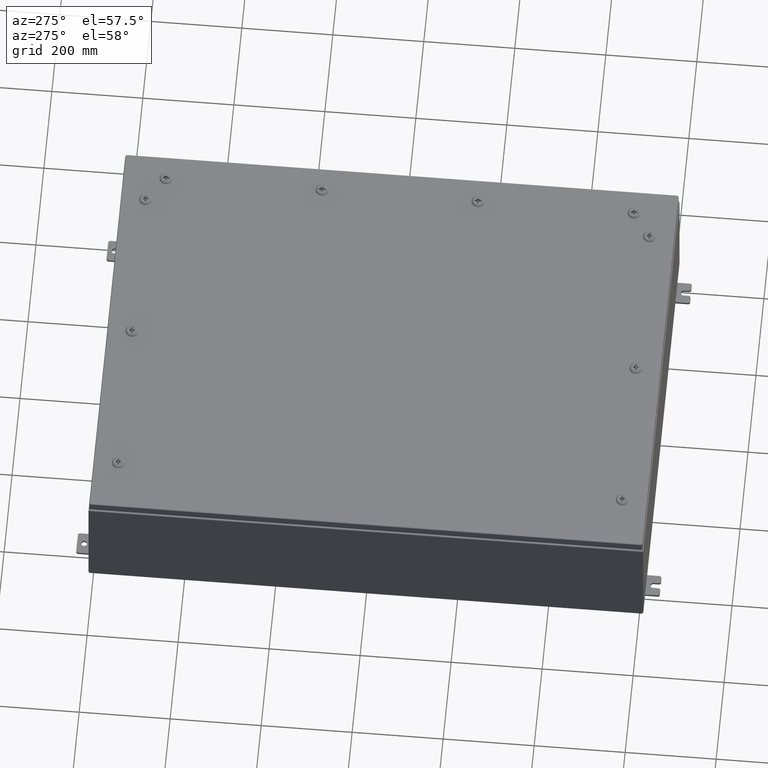
[diagram: clean part render]
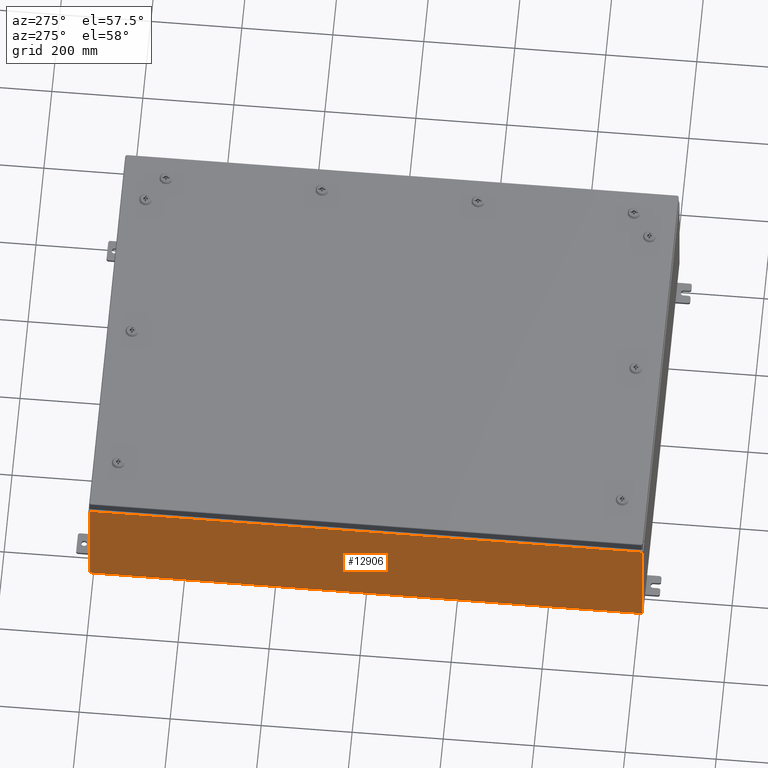
[diagram: same view with one face highlighted and labeled with its STEP entity id]
A machine part, auxiliary view. The second image highlights one B-rep face of the part: STEP entity #12906.
In plain terms, the highlighted planar face has unit normal (1, 0, 0).
Its self-contained STEP definition (entity closure, byte-faithful):
#1751 = VERTEX_POINT ( 'NONE', #55075 ) ;
#1830 = DIRECTION ( 'NONE',  ( -3.523082860860888200E-015, 0.0000000000000000000, 1.000000000000000000 ) ) ;
#6359 = CARTESIAN_POINT ( 'NONE',  ( -18.00000000000000400, -23.92529999999998600, 0.01299999999999984700 ) ) ;
#6766 = CARTESIAN_POINT ( 'NONE',  ( -18.00000000000000400, 23.92529999999998900, 0.01299999999999984700 ) ) ;
#6809 = DIRECTION ( 'NONE',  ( 3.523082860860887800E-015, 0.0000000000000000000, -1.000000000000000000 ) ) ;
#6946 = VECTOR ( 'NONE', #1830, 39.37007874015748100 ) ;
#9492 = VECTOR ( 'NONE', #29112, 39.37007874015748100 ) ;
#12906 = ADVANCED_FACE ( 'NONE', ( #28626 ), #43453, .F. ) ;
#13061 = EDGE_CURVE ( 'NONE', #1751, #45808, #37717, .T. ) ;
#17371 = VERTEX_POINT ( 'NONE', #6359 ) ;
#19452 = LINE ( 'NONE', #33650, #6946 ) ;
#22627 = CARTESIAN_POINT ( 'NONE',  ( -18.00000000000000400, 0.0000000000000000000, -6.367630515150756800E-014 ) ) ;
#23648 = LINE ( 'NONE', #6766, #48508 ) ;
#24668 = CARTESIAN_POINT ( 'NONE',  ( -18.00000000000003900, 23.92529999999998900, 9.837599999999998300 ) ) ;
#28626 = FACE_OUTER_BOUND ( 'NONE', #41000, .T. ) ;
#28682 = EDGE_CURVE ( 'NONE', #17371, #66273, #23648, .T. ) ;
#29112 = DIRECTION ( 'NONE',  ( 0.0000000000000000000, 1.000000000000000000, 0.0000000000000000000 ) ) ;
#29287 = EDGE_CURVE ( 'NONE', #17371, #1751, #19452, .T. ) ;
#30471 = ORIENTED_EDGE ( 'NONE', *, *, #13061, .T. ) ;
#30927 = ORIENTED_EDGE ( 'NONE', *, *, #29287, .T. ) ;
#31248 = CARTESIAN_POINT ( 'NONE',  ( -18.00000000000000400, 23.92529999999998900, -6.367630515150756800E-014 ) ) ;
#32771 = LINE ( 'NONE', #31248, #59383 ) ;
#33650 = CARTESIAN_POINT ( 'NONE',  ( -18.00000000000000400, -23.92529999999999600, -6.367630515150756800E-014 ) ) ;
#36001 = ORIENTED_EDGE ( 'NONE', *, *, #66604, .T. ) ;
#37717 = LINE ( 'NONE', #66255, #9492 ) ;
#38614 = DIRECTION ( 'NONE',  ( 1.000000000000000000, 0.0000000000000000000, 3.523082860860887800E-015 ) ) ;
#39966 = AXIS2_PLACEMENT_3D ( 'NONE', #22627, #38614, #6809 ) ;
#41000 = EDGE_LOOP ( 'NONE', ( #30471, #36001, #61040, #30927 ) ) ;
#43453 = PLANE ( 'NONE',  #39966 ) ;
#45808 = VERTEX_POINT ( 'NONE', #24668 ) ;
#48508 = VECTOR ( 'NONE', #65070, 39.37007874015748100 ) ;
#55075 = CARTESIAN_POINT ( 'NONE',  ( -18.00000000000003900, -23.92529999999998600, 9.837599999999998300 ) ) ;
#57762 = DIRECTION ( 'NONE',  ( 3.523082860860888200E-015, 0.0000000000000000000, -1.000000000000000000 ) ) ;
#59383 = VECTOR ( 'NONE', #57762, 39.37007874015748100 ) ;
#60803 = CARTESIAN_POINT ( 'NONE',  ( -18.00000000000000400, 23.92529999999998900, 0.01299999999999984300 ) ) ;
#61040 = ORIENTED_EDGE ( 'NONE', *, *, #28682, .F. ) ;
#65070 = DIRECTION ( 'NONE',  ( -0.0000000000000000000, 1.000000000000000000, -0.0000000000000000000 ) ) ;
#66255 = CARTESIAN_POINT ( 'NONE',  ( -18.00000000000003900, -23.92529999999998900, 9.837599999999998300 ) ) ;
#66273 = VERTEX_POINT ( 'NONE', #60803 ) ;
#66604 = EDGE_CURVE ( 'NONE', #45808, #66273, #32771, .T. ) ;